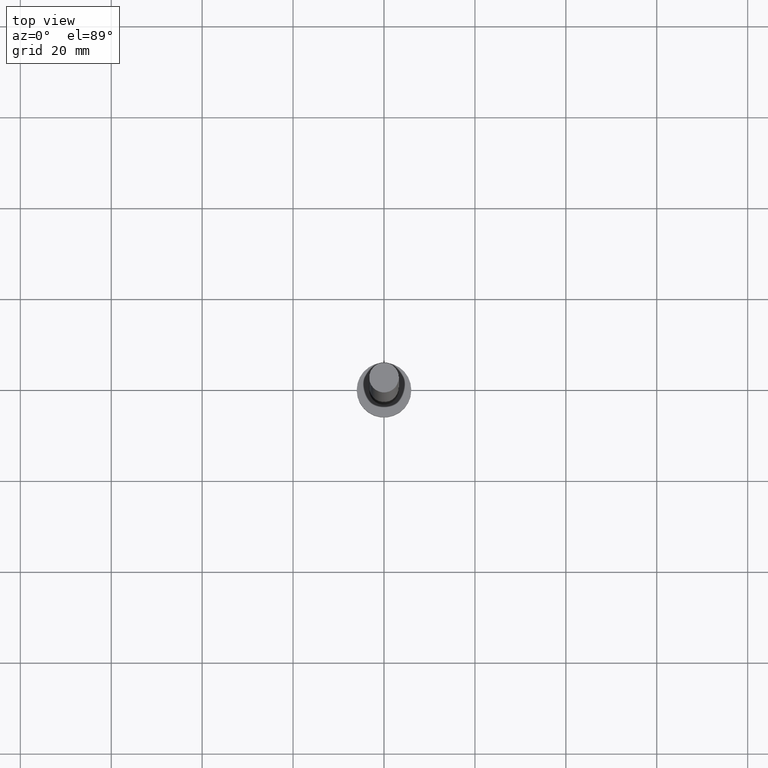
[diagram: clean part render]
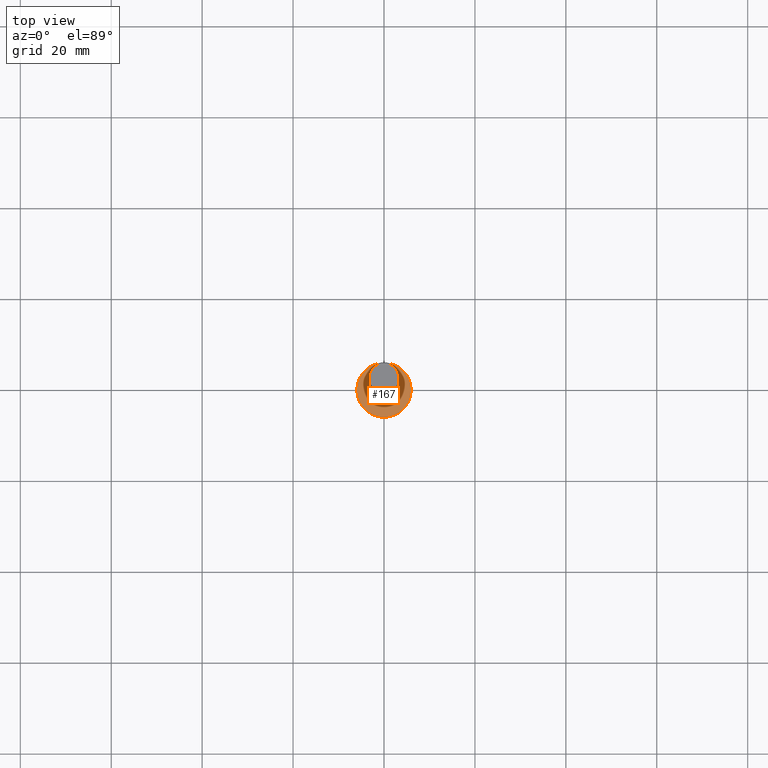
[diagram: same view with one face highlighted and labeled with its STEP entity id]
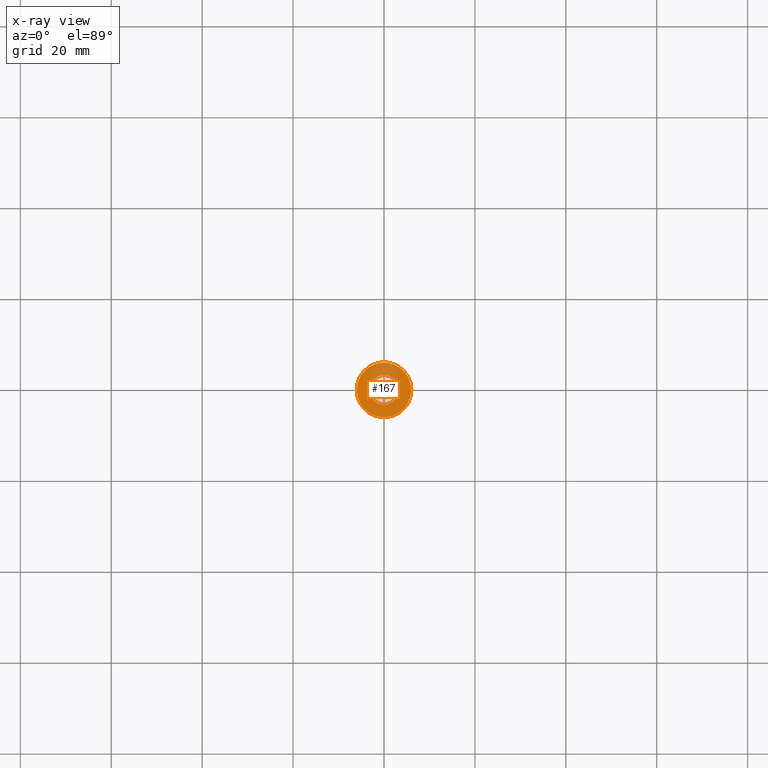
[diagram: x-ray of the same camera — body ghosted, the highlighted face saturated]
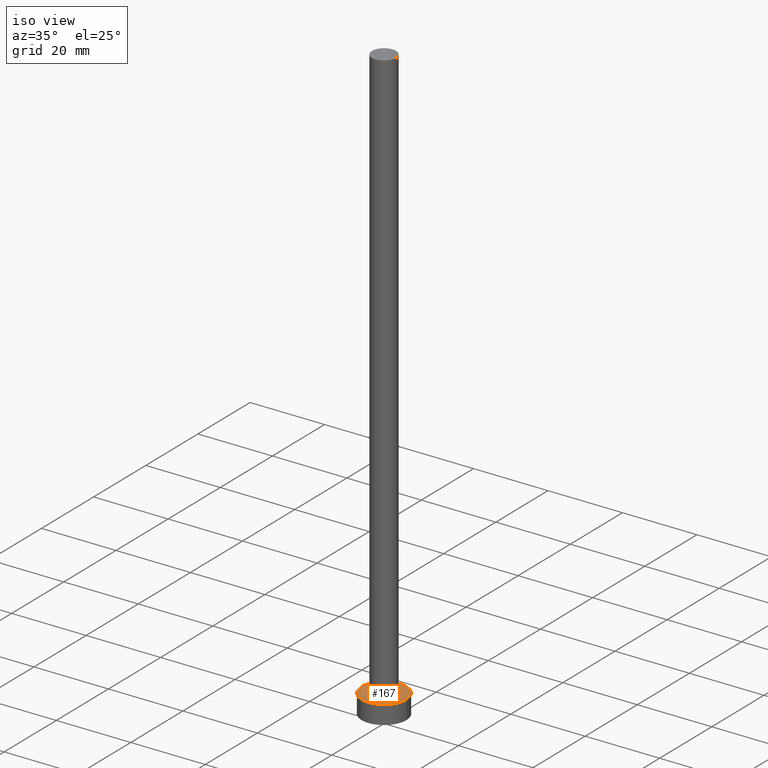
[diagram: same view with one face highlighted and labeled with its STEP entity id]
A machine part, top view. The second image highlights one B-rep face of the part: STEP entity #167.
The next image is the same camera in x-ray: the body ghosted, the highlighted face saturated — about 22% of this face is hidden behind the body in this view.
A second angle (iso view) of the same face is appended — the face is thin or edge-on in the first view.
In plain terms, the highlighted planar face has unit normal (0, 0, 1).
Its self-contained STEP definition (entity closure, byte-faithful):
#3 = DIRECTION ( 'NONE',  ( 0.000000000000000000, 0.000000000000000000, 1.000000000000000000 ) ) ;
#12 = DIRECTION ( 'NONE',  ( 1.000000000000000000, 0.000000000000000000, 0.000000000000000000 ) ) ;
#15 = EDGE_CURVE ( 'NONE', #114, #231, #133, .T. ) ;
#28 = CIRCLE ( 'NONE', #124, 3.250000000000000444 ) ;
#33 = DIRECTION ( 'NONE',  ( 0.000000000000000000, 0.000000000000000000, 1.000000000000000000 ) ) ;
#40 = VERTEX_POINT ( 'NONE', #66 ) ;
#53 = ORIENTED_EDGE ( 'NONE', *, *, #151, .F. ) ;
#55 = DIRECTION ( 'NONE',  ( 0.000000000000000000, 0.000000000000000000, 1.000000000000000000 ) ) ;
#56 = CARTESIAN_POINT ( 'NONE',  ( 3.250000000000000444, 3.980102097228898231E-16, 5.000000000000000000 ) ) ;
#59 = AXIS2_PLACEMENT_3D ( 'NONE', #112, #223, #198 ) ;
#66 = CARTESIAN_POINT ( 'NONE',  ( -3.250000000000000444, 0.000000000000000000, 5.000000000000000000 ) ) ;
#68 = VERTEX_POINT ( 'NONE', #56 ) ;
#69 = AXIS2_PLACEMENT_3D ( 'NONE', #229, #3, #89 ) ;
#78 = PLANE ( 'NONE',  #164 ) ;
#85 = CARTESIAN_POINT ( 'NONE',  ( -6.000000000000000888, 0.000000000000000000, 5.000000000000000000 ) ) ;
#87 = DIRECTION ( 'NONE',  ( 1.000000000000000000, 0.000000000000000000, 0.000000000000000000 ) ) ;
#89 = DIRECTION ( 'NONE',  ( 1.000000000000000000, 0.000000000000000000, 0.000000000000000000 ) ) ;
#96 = EDGE_CURVE ( 'NONE', #231, #114, #142, .T. ) ;
#99 = AXIS2_PLACEMENT_3D ( 'NONE', #225, #55, #12 ) ;
#112 = CARTESIAN_POINT ( 'NONE',  ( 0.000000000000000000, 0.000000000000000000, 5.000000000000000000 ) ) ;
#114 = VERTEX_POINT ( 'NONE', #85 ) ;
#117 = EDGE_LOOP ( 'NONE', ( #204, #53 ) ) ;
#124 = AXIS2_PLACEMENT_3D ( 'NONE', #214, #163, #87 ) ;
#131 = EDGE_CURVE ( 'NONE', #40, #68, #28, .T. ) ;
#133 = CIRCLE ( 'NONE', #99, 6.000000000000000888 ) ;
#138 = ORIENTED_EDGE ( 'NONE', *, *, #96, .T. ) ;
#142 = CIRCLE ( 'NONE', #69, 6.000000000000000888 ) ;
#151 = EDGE_CURVE ( 'NONE', #68, #40, #200, .T. ) ;
#152 = FACE_BOUND ( 'NONE', #117, .T. ) ;
#163 = DIRECTION ( 'NONE',  ( 0.000000000000000000, 0.000000000000000000, 1.000000000000000000 ) ) ;
#164 = AXIS2_PLACEMENT_3D ( 'NONE', #209, #33, #218 ) ;
#167 = ADVANCED_FACE ( 'NONE', ( #152, #244 ), #78, .T. ) ;
#196 = ORIENTED_EDGE ( 'NONE', *, *, #15, .T. ) ;
#198 = DIRECTION ( 'NONE',  ( 1.000000000000000000, 0.000000000000000000, 0.000000000000000000 ) ) ;
#200 = CIRCLE ( 'NONE', #59, 3.250000000000000444 ) ;
#202 = CARTESIAN_POINT ( 'NONE',  ( 6.000000000000000888, 7.347880794884120722E-16, 5.000000000000000000 ) ) ;
#204 = ORIENTED_EDGE ( 'NONE', *, *, #131, .F. ) ;
#209 = CARTESIAN_POINT ( 'NONE',  ( 0.000000000000000000, 0.000000000000000000, 5.000000000000000000 ) ) ;
#214 = CARTESIAN_POINT ( 'NONE',  ( 0.000000000000000000, 0.000000000000000000, 5.000000000000000000 ) ) ;
#218 = DIRECTION ( 'NONE',  ( 1.000000000000000000, 0.000000000000000000, -0.000000000000000000 ) ) ;
#223 = DIRECTION ( 'NONE',  ( 0.000000000000000000, 0.000000000000000000, 1.000000000000000000 ) ) ;
#224 = EDGE_LOOP ( 'NONE', ( #196, #138 ) ) ;
#225 = CARTESIAN_POINT ( 'NONE',  ( 0.000000000000000000, 0.000000000000000000, 5.000000000000000000 ) ) ;
#229 = CARTESIAN_POINT ( 'NONE',  ( 0.000000000000000000, 0.000000000000000000, 5.000000000000000000 ) ) ;
#231 = VERTEX_POINT ( 'NONE', #202 ) ;
#244 = FACE_OUTER_BOUND ( 'NONE', #224, .T. ) ;